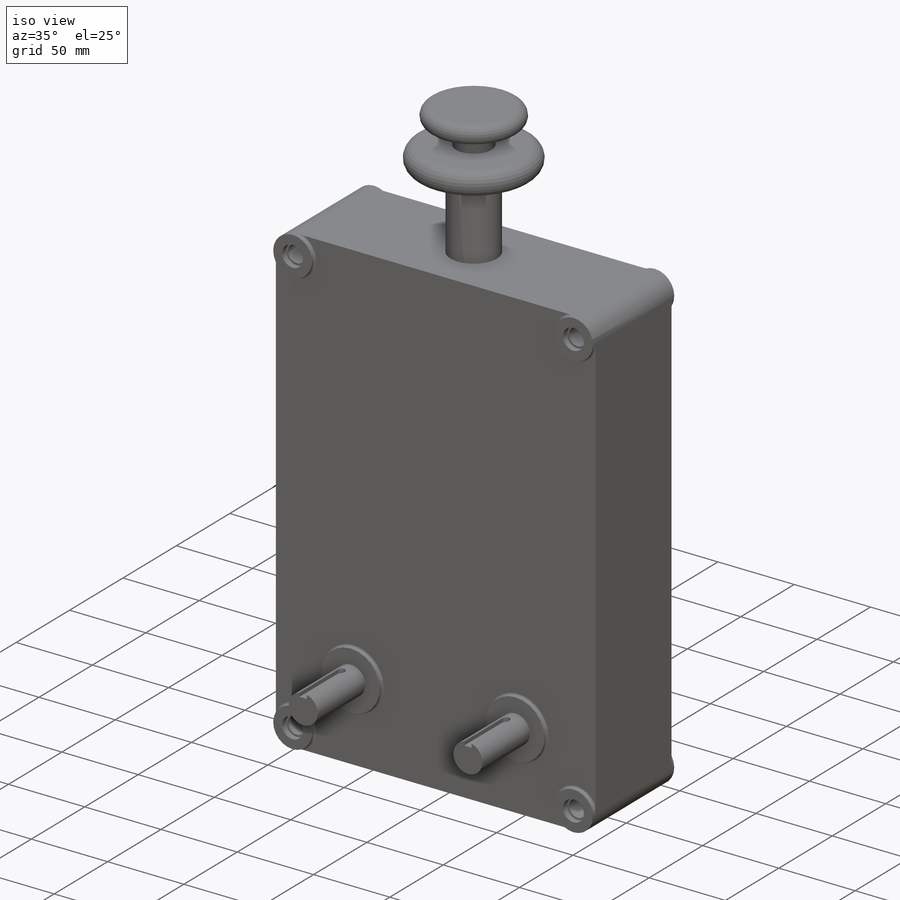
[diagram: iso view]
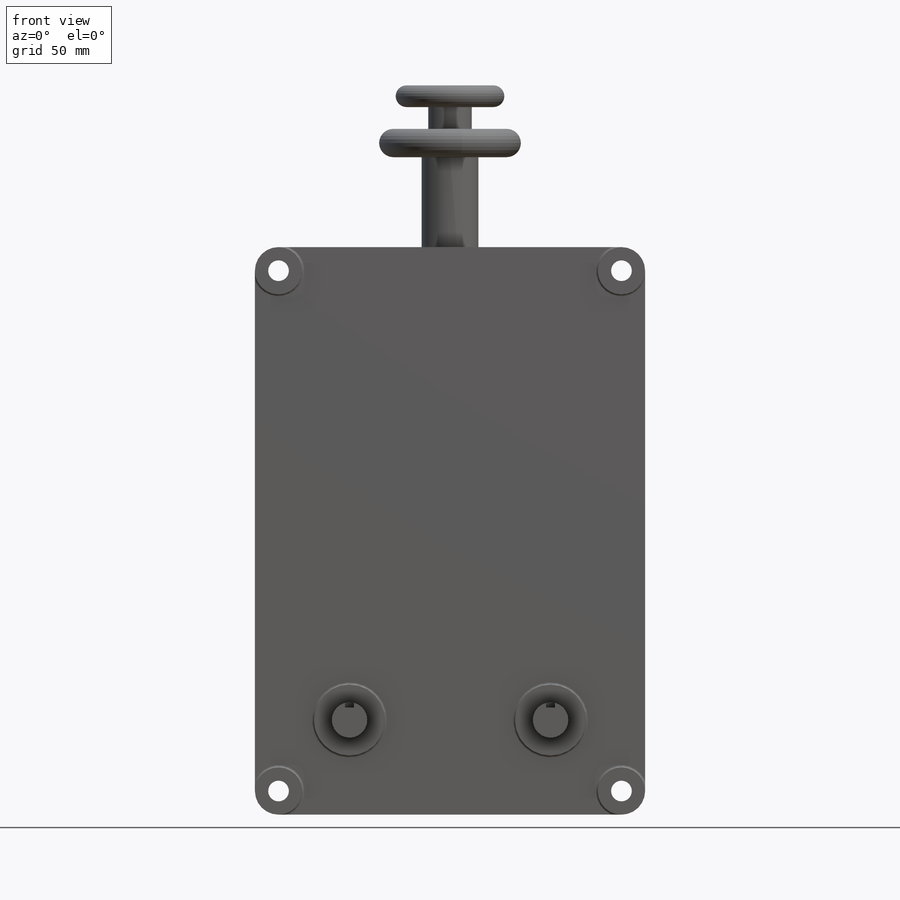
[diagram: front view]
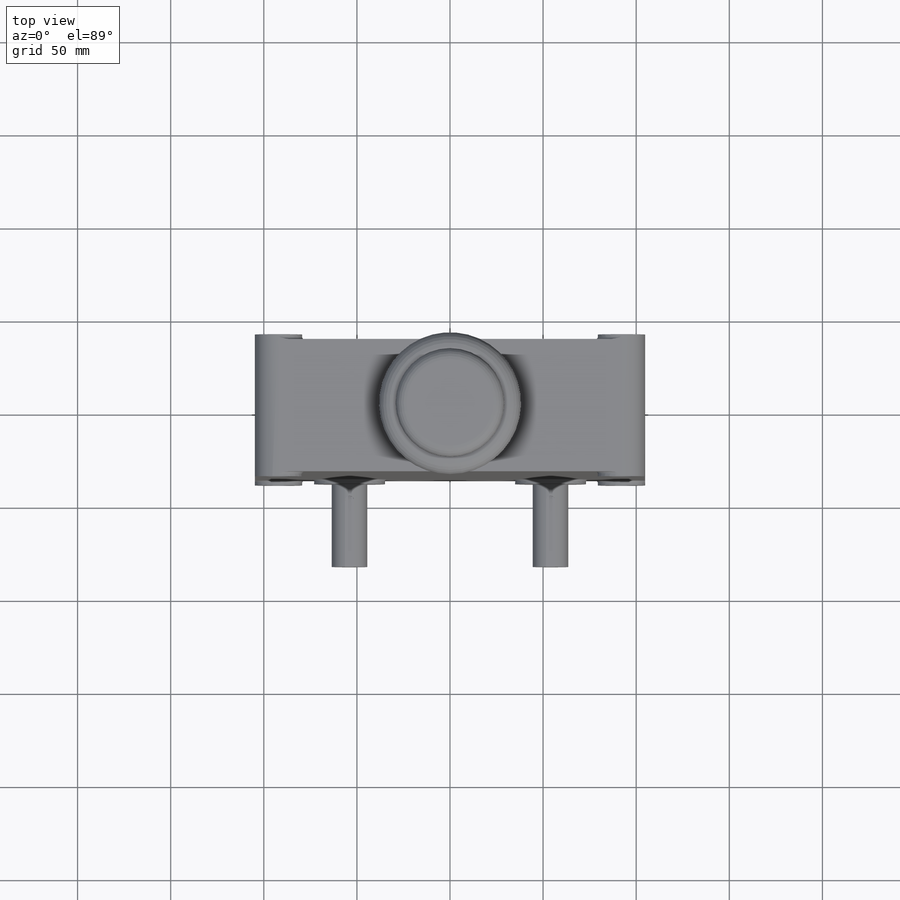
[diagram: top view]
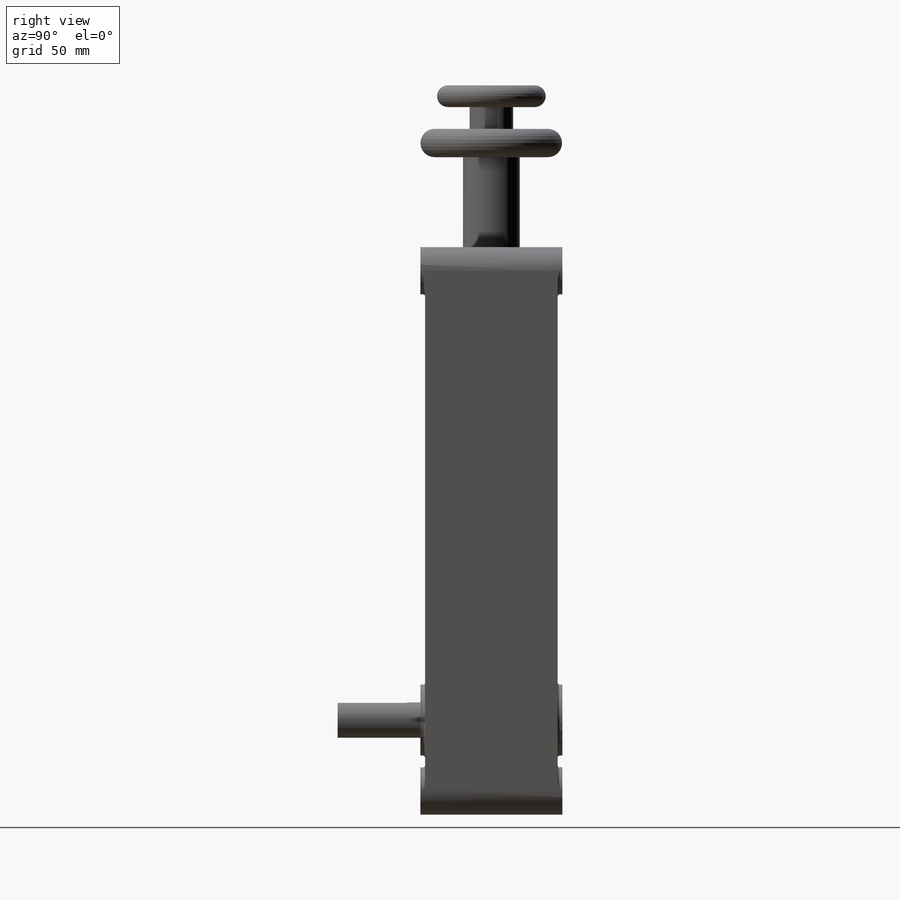
[diagram: right view]
SOLIDWORKS PART (.sldprt)
format: sldprt  version: not decoded by parser v0  size: 518,144 bytes
history: native  units: mm
features: sketch x9, cut_extrude x5, extrude x2, fillet x2, revolve x2, material x1, mirror x1 + 1 further entry (+17 scaffold rows collapsed)
feature tree (40):
  scaffold x17  (default folders/planes/origin — collapsed)
  material  "Material <not specified>"
  "Design Table"
  sketch  "Sketch1"  dims[Dim A=209.55mm Dim B=304.8mm]
  extrude  "Boss-Extrude1"  Depth=76.2mm Dim K=76.2mm
  sketch  "Sketch3"  dims[Dim L=11.1125mm D1=~8.73125mm D2=~8.73125mm Dim G=184.15mm Dim H=279.4mm]
  cut_extrude  "Cut-Extrude1"  [1 undecoded]
  sketch  "Sketch4"  dims[D1=1.27mm D2=1.27mm D3=1.27mm D4=1.27mm]
  cut_extrude  "Cut-Extrude2"  Depth=3.81mm
  sketch  "Sketch5"
  cut_extrude  "Cut-Extrude3"  [1 undecoded]
  sketch  "Sketch6"  dims[Dim face diameter=38.1mm Dim N=50.8mm Dim F=107.95mm Dim O=50.8mm]
  cut_extrude  "Cut-Extrude4"  Depth=2.54mm
  fillet  "Fillet2"  Radius=1.27mm
  mirror  "Mirror1"
  sketch  "Sketch8"  dims[Dim E=19.05mm]
  extrude  "Boss-Extrude2"  Depth=44.45mm Dim D=44.45mm
  sketch  "Sketch9"  dims[Dim M=4.7625mm Dim keyway depth=2.7432mm]
  cut_extrude  "Cut-Extrude5"  Depth=6.35mm
  fillet  "Fillet3"  Radius=2.38125mm Dim M/2=2.38125mm
  sketch  "Sketch12"  dims[Dim K=76.2mm Dim J=63.5mm]
  revolve  "Revolve1"  Angle=360deg
  sketch  "Sketch13"  dims[c1.D1=~9.087945mm c2.D1=130.0deg]
  revolve  "Revolve2"  Angle=360deg
decode coverage: 17 of 21 modeling features carry decoded parameters; 1 rows unclassified (native names shown)
note: ~ marks probable driven/reference dimensions
note: 2 parameter values undecoded
note: suppression state not decoded; provenance and decode notes live in map.json
